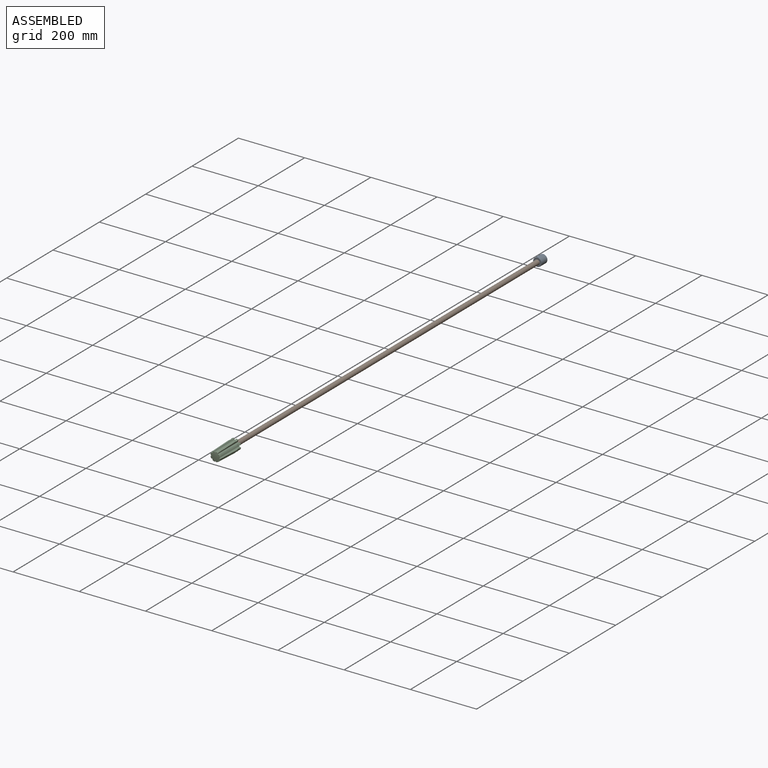
[diagram: assembled view]
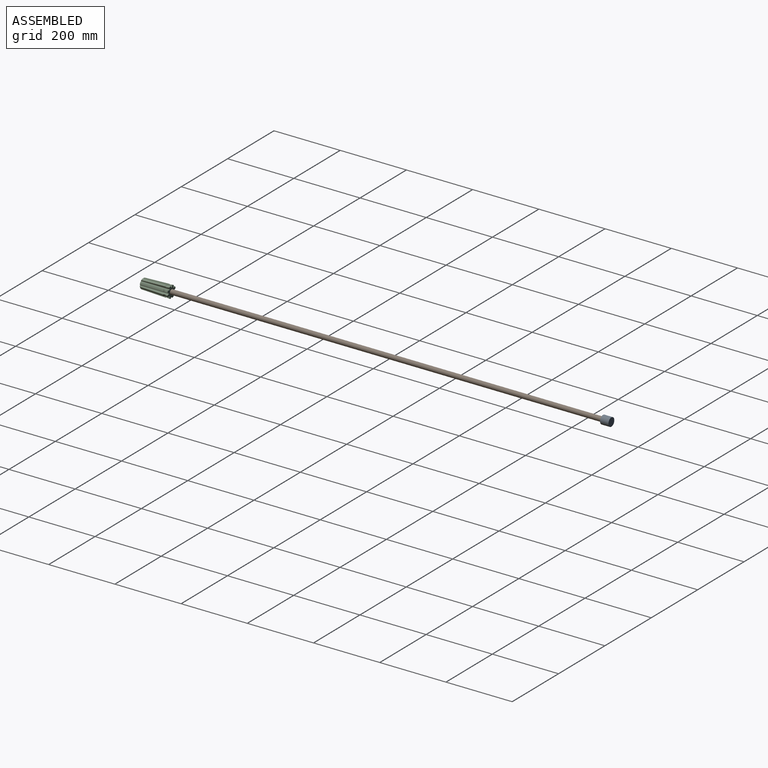
[diagram: assembled view, second angle]
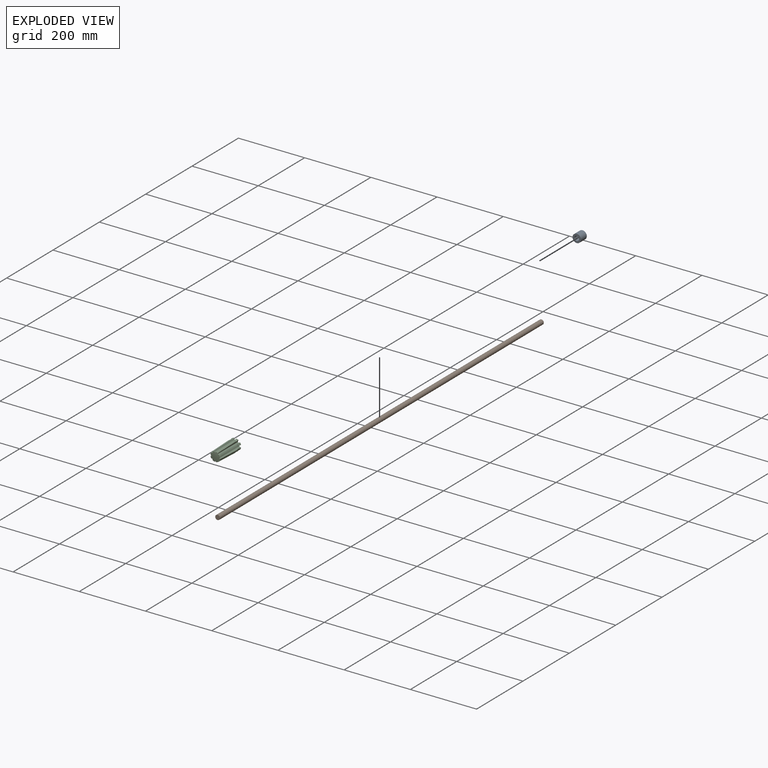
[diagram: exploded view]
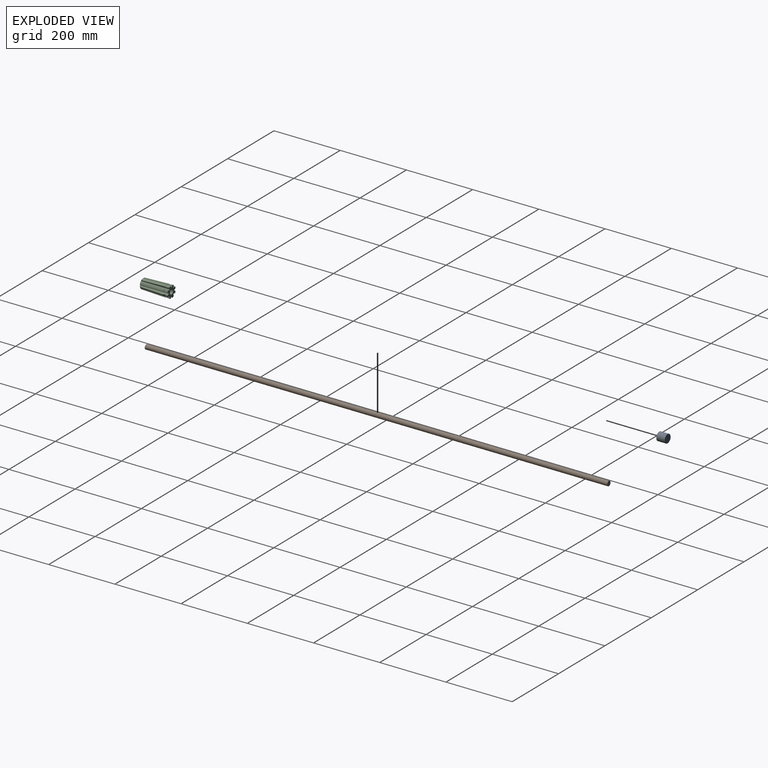
[diagram: exploded view, second angle]
ASSEMBLY  parts=3 mates=2
PART A: 5 faces, bbox 25.4x25.4x25.4 mm
  f0: plane 14.29x14.29mm, normal (0,-1,0), area 160.3mm2, adj f1
  f1: cylinder r=7.14mm len=17.78mm, axis (0,-1,0), area 798.1mm2, adj f0,f2
  f2: plane 25.4x25.4mm, normal (0,-1,0), area 346.4mm2, adj f1,f3
  f3: cylinder r=12.7mm len=25.4mm, axis (0,-1,0), area 2026.8mm2, adj f2,f4
  f4: plane 25.4x25.4mm, normal (0,1,0), area 506.7mm2, adj f3
PART B: 3 faces, bbox 14.3x1397x14.3 mm
  f0: cylinder r=7.14mm len=1397mm, axis (0,-1,0), area 62705.1mm2, adj f1,f2
  f1: plane 14.29x14.29mm, normal (0,1,0), area 160.3mm2, adj f0
  f2: plane 14.29x14.29mm, normal (0,-1,0), area 160.3mm2, adj f0
PART C: 60 faces, bbox 40.7x87.7x40.7 mm
  f0: torus R=29.41mm, axis (0,1,0), area 66.4mm2, adj f1,f3,f5,f13
  f1: cylinder r=17.78mm len=5.78mm, axis (0,1,0), area 23.9mm2, adj f0,f5,f13,f52
  f2: torus R=12.77mm, axis (0,1,0), area 23.4mm2, adj f3,f4,f5,f11,f13,f55
  f3: cone r=17.77mm half-angle=2deg, axis (0,1,0), area 450.4mm2, adj f0,f2,f5,f13
  f4: cylinder r=2.03mm len=86.85mm, axis (0,1,0), area 400.1mm2, adj f2,f5,f6,f52,f55,f56
  f5: plane 86.66x4.38mm, normal (-0.34,0,0.94), area 299.2mm2, adj f0,f1,f2,f3,f4,f52
  f6: plane 86.66x4.38mm, normal (0.94,0,-0.34), area 299.2mm2, adj f4,f49,f50,f51,f52,f56
  f7: torus R=29.41mm, axis (0,1,0), area 66.4mm2, adj f8,f10,f12,f20
  f8: cylinder r=17.78mm len=5.78mm, axis (0,1,0), area 23.9mm2, adj f7,f12,f20,f52
  f9: torus R=12.77mm, axis (0,1,0), area 23.4mm2, adj f10,f11,f12,f18,f20,f55
  f10: cone r=17.77mm half-angle=2deg, axis (0,1,0), area 450.4mm2, adj f7,f9,f12,f20
  f11: cylinder r=2.03mm len=86.85mm, axis (0,1,0), area 400.1mm2, adj f2,f9,f12,f13,f52,f55
  f12: plane 86.66x4.22mm, normal (0.42,0,0.91), area 299.2mm2, adj f7,f8,f9,f10,f11,f52
  f13: plane 86.66x4.22mm, normal (0.42,0,-0.91), area 299.2mm2, adj f0,f1,f2,f3,f11,f52
  f14: torus R=29.41mm, axis (0,1,0), area 66.4mm2, adj f15,f17,f19,f27
  f15: cylinder r=17.78mm len=5.78mm, axis (0,1,0), area 23.9mm2, adj f14,f19,f27,f52
  f16: torus R=12.77mm, axis (0,1,0), area 23.4mm2, adj f17,f18,f19,f25,f27,f55
  f17: cone r=17.77mm half-angle=2deg, axis (0,1,0), area 450.4mm2, adj f14,f16,f19,f27
  f18: cylinder r=2.03mm len=86.85mm, axis (0,1,0), area 400.1mm2, adj f9,f16,f19,f20,f52,f55
  f19: plane 86.66x4.38mm, normal (0.94,0,0.34), area 299.2mm2, adj f14,f15,f16,f17,f18,f52
  f20: plane 86.66x4.38mm, normal (-0.34,0,-0.94), area 299.2mm2, adj f7,f8,f9,f10,f18,f52
  f21: torus R=29.41mm, axis (0,1,0), area 66.4mm2, adj f22,f24,f26,f34
  f22: cylinder r=17.78mm len=5.78mm, axis (0,1,0), area 23.9mm2, adj f21,f26,f34,f52
  f23: torus R=12.77mm, axis (0,1,0), area 23.4mm2, adj f24,f25,f26,f32,f34,f55
  f24: cone r=17.77mm half-angle=2deg, axis (0,1,0), area 450.4mm2, adj f21,f23,f26,f34
  f25: cylinder r=2.03mm len=86.85mm, axis (0,1,0), area 400.1mm2, adj f16,f23,f26,f27,f52,f55
  f26: plane 86.66x4.22mm, normal (0.91,0,-0.42), area 299.2mm2, adj f21,f22,f23,f24,f25,f52
  f27: plane 86.66x4.22mm, normal (-0.91,0,-0.42), area 299.2mm2, adj f14,f15,f16,f17,f25,f52
  f28: torus R=29.41mm, axis (0,1,0), area 66.4mm2, adj f29,f31,f33,f41
  f29: cylinder r=17.78mm len=5.78mm, axis (0,1,0), area 23.9mm2, adj f28,f33,f41,f52
  f30: torus R=12.77mm, axis (0,1,0), area 23.4mm2, adj f31,f32,f33,f39,f41,f55
  f31: cone r=17.77mm half-angle=2deg, axis (0,1,0), area 450.4mm2, adj f28,f30,f33,f41
  f32: cylinder r=2.03mm len=86.85mm, axis (0,1,0), area 400.1mm2, adj f23,f30,f33,f34,f52,f55
  f33: plane 86.66x4.38mm, normal (0.34,0,-0.94), area 299.2mm2, adj f28,f29,f30,f31,f32,f52
  f34: plane 86.66x4.38mm, normal (-0.94,0,0.34), area 299.2mm2, adj f21,f22,f23,f24,f32,f52
  f35: torus R=29.41mm, axis (0,1,0), area 66.4mm2, adj f36,f38,f40,f48
  f36: cylinder r=17.78mm len=5.78mm, axis (0,1,0), area 23.9mm2, adj f35,f40,f48,f52
  f37: torus R=12.77mm, axis (0,1,0), area 23.4mm2, adj f38,f39,f40,f46,f48,f55
  f38: cone r=17.77mm half-angle=2deg, axis (0,1,0), area 450.4mm2, adj f35,f37,f40,f48
  f39: cylinder r=2.03mm len=86.85mm, axis (0,1,0), area 400.1mm2, adj f30,f37,f40,f41,f52,f55
  f40: plane 86.66x4.22mm, normal (-0.42,0,-0.91), area 299.2mm2, adj f35,f36,f37,f38,f39,f52
  f41: plane 86.66x4.22mm, normal (-0.42,0,0.91), area 299.2mm2, adj f28,f29,f30,f31,f39,f52
  f42: torus R=29.41mm, axis (0,1,0), area 66.4mm2, adj f43,f45,f47,f58
  f43: cylinder r=17.78mm len=5.78mm, axis (0,1,0), area 23.9mm2, adj f42,f47,f52,f58
  f44: torus R=12.77mm, axis (0,1,0), area 23.4mm2, adj f45,f46,f47,f55,f57,f58
  f45: cone r=17.77mm half-angle=2deg, axis (0,1,0), area 450.4mm2, adj f42,f44,f47,f58
  f46: cylinder r=2.03mm len=86.85mm, axis (0,1,0), area 400.1mm2, adj f37,f44,f47,f48,f52,f55
  f47: plane 86.66x4.38mm, normal (-0.94,0,-0.34), area 299.2mm2, adj f42,f43,f44,f45,f46,f52
  f48: plane 86.66x4.38mm, normal (0.34,0,0.94), area 299.2mm2, adj f35,f36,f37,f38,f46,f52
  f49: cone r=17.77mm half-angle=2deg, axis (0,1,0), area 450.4mm2, adj f6,f50,f56,f59
  f50: torus R=29.41mm, axis (0,1,0), area 66.4mm2, adj f6,f49,f51,f59
  f51: cylinder r=17.78mm len=5.78mm, axis (0,1,0), area 23.9mm2, adj f6,f50,f52,f59
  f52: plane 34.73x34.73mm, normal (0,1,0), area 600.3mm2, adj f1,f4,f5,f6,f8,f11,f12,f13
  f53: cylinder r=7.14mm len=76.2mm, axis (0,1,0), area 3420.3mm2, adj f52,f54
  f54: plane 14.29x14.29mm, normal (0,1,0), area 160.3mm2, adj f53
  f55: sphere r=92.08mm, area 521.4mm2, adj f2,f4,f9,f11,f16,f18,f23,f25
  f56: torus R=12.77mm, axis (0,1,0), area 23.4mm2, adj f4,f6,f49,f55,f57,f59
  f57: cylinder r=2.03mm len=86.85mm, axis (0,1,0), area 400.1mm2, adj f44,f52,f55,f56,f58,f59
  f58: plane 86.66x4.22mm, normal (0.91,0,0.42), area 299.2mm2, adj f42,f43,f44,f45,f52,f57
  f59: plane 86.66x4.22mm, normal (-0.91,0,0.42), area 299.2mm2, adj f49,f50,f51,f52,f56,f57
PLACE A at identity
PLACE B at identity
PLACE C at identity
MATE fastened B.f0 <-> A.f1  axis (0,1,0) through (-533.4,698.5,120.65)mm
MATE fastened B.f0 <-> C.f0  axis (0,-1,0) through (-533.4,-698.5,120.65)mm
